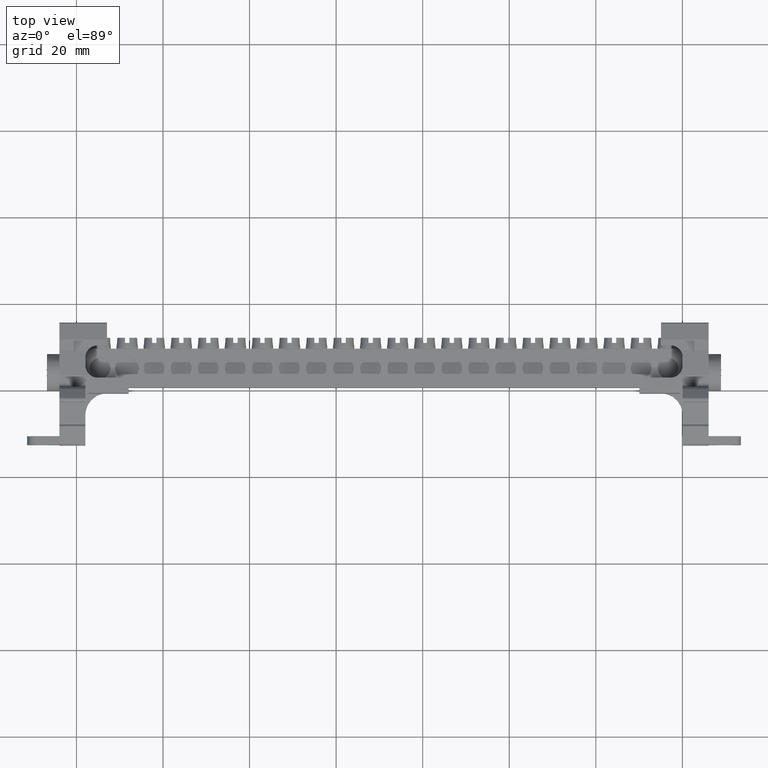
[diagram: clean part render]
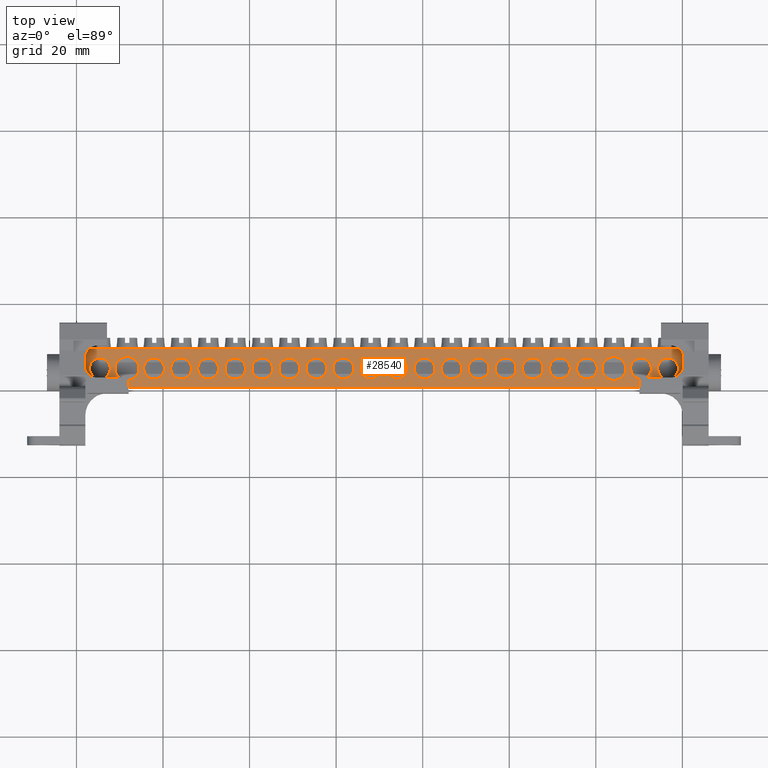
[diagram: same view with one face highlighted and labeled with its STEP entity id]
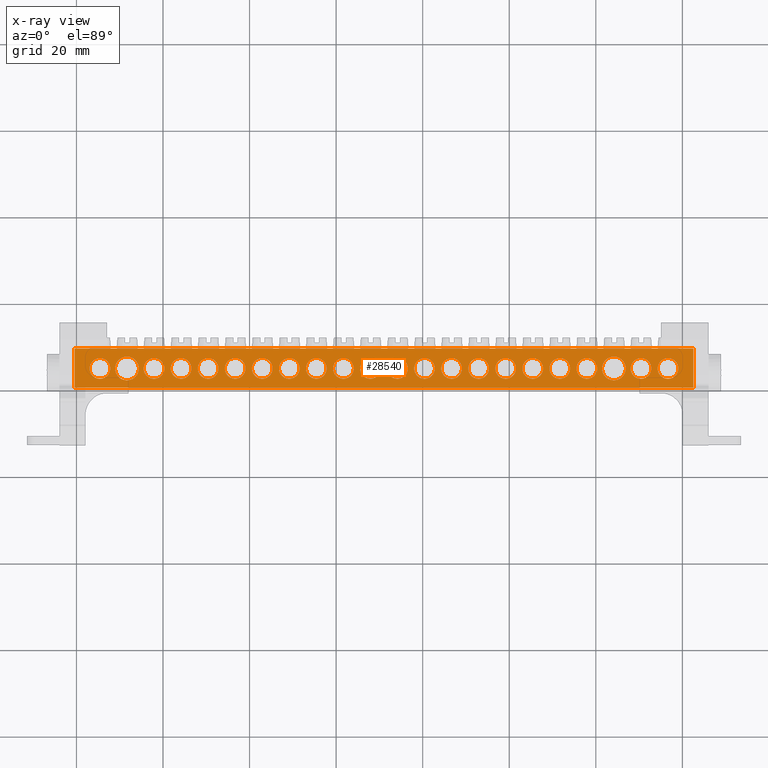
[diagram: x-ray of the same camera — body ghosted, the highlighted face saturated]
A machine part, top view. The second image highlights one B-rep face of the part: STEP entity #28540.
The next image is the same camera in x-ray: the body ghosted, the highlighted face saturated — about 0% of this face is hidden behind the body in this view.
In plain terms, the highlighted planar face has unit normal (-0, -0, 1).
Its self-contained STEP definition (entity closure, byte-faithful):
#556 = CIRCLE ( 'NONE', #573, 2.399999999999999500 ) ;
#560 = CIRCLE ( 'NONE', #571, 2.399999999999999500 ) ;
#564 = CIRCLE ( 'NONE', #597, 2.399999999999999500 ) ;
#571 = AXIS2_PLACEMENT_3D ( 'NONE', #18329, #18360, #18357 ) ;
#573 = AXIS2_PLACEMENT_3D ( 'NONE', #18232, #18201, #18177 ) ;
#575 = AXIS2_PLACEMENT_3D ( 'NONE', #18197, #18152, #18247 ) ;
#585 = CIRCLE ( 'NONE', #600, 2.750000000000002700 ) ;
#597 = AXIS2_PLACEMENT_3D ( 'NONE', #18392, #18439, #18432 ) ;
#598 = AXIS2_PLACEMENT_3D ( 'NONE', #18260, #18229, #18245 ) ;
#600 = AXIS2_PLACEMENT_3D ( 'NONE', #18301, #18327, #18289 ) ;
#607 = CIRCLE ( 'NONE', #598, 2.399999999999999500 ) ;
#609 = CIRCLE ( 'NONE', #575, 2.399999999999999500 ) ;
#611 = CIRCLE ( 'NONE', #612, 2.399999999999999500 ) ;
#612 = AXIS2_PLACEMENT_3D ( 'NONE', #18684, #18724, #18708 ) ;
#624 = CIRCLE ( 'NONE', #634, 2.399999999999999500 ) ;
#626 = CIRCLE ( 'NONE', #635, 2.750000000000002700 ) ;
#634 = AXIS2_PLACEMENT_3D ( 'NONE', #18573, #18642, #18597 ) ;
#635 = AXIS2_PLACEMENT_3D ( 'NONE', #18764, #18683, #18731 ) ;
#720 = AXIS2_PLACEMENT_3D ( 'NONE', #11754, #11761, #11814 ) ;
#739 = CIRCLE ( 'NONE', #720, 2.399999999999999500 ) ;
#767 = CIRCLE ( 'NONE', #772, 2.399999999999999500 ) ;
#772 = AXIS2_PLACEMENT_3D ( 'NONE', #10725, #10723, #10708 ) ;
#786 = CIRCLE ( 'NONE', #800, 2.399999999999999500 ) ;
#794 = CIRCLE ( 'NONE', #799, 2.399999999999999500 ) ;
#799 = AXIS2_PLACEMENT_3D ( 'NONE', #10759, #10747, #10775 ) ;
#800 = AXIS2_PLACEMENT_3D ( 'NONE', #10740, #10711, #10715 ) ;
#813 = CIRCLE ( 'NONE', #824, 2.399999999999999500 ) ;
#815 = CIRCLE ( 'NONE', #853, 2.750000000000002700 ) ;
#819 = CIRCLE ( 'NONE', #855, 2.399999999999999500 ) ;
#821 = CIRCLE ( 'NONE', #822, 2.399999999999999500 ) ;
#822 = AXIS2_PLACEMENT_3D ( 'NONE', #10861, #10859, #10845 ) ;
#824 = AXIS2_PLACEMENT_3D ( 'NONE', #10875, #10876, #10841 ) ;
#838 = CIRCLE ( 'NONE', #852, 2.399999999999999500 ) ;
#852 = AXIS2_PLACEMENT_3D ( 'NONE', #10774, #10778, #10761 ) ;
#853 = AXIS2_PLACEMENT_3D ( 'NONE', #10805, #10824, #10825 ) ;
#855 = AXIS2_PLACEMENT_3D ( 'NONE', #10809, #10832, #10828 ) ;
#858 = CIRCLE ( 'NONE', #860, 2.399999999999999500 ) ;
#860 = AXIS2_PLACEMENT_3D ( 'NONE', #10812, #10816, #10827 ) ;
#863 = CIRCLE ( 'NONE', #870, 2.399999999999999500 ) ;
#864 = CIRCLE ( 'NONE', #866, 2.399999999999999500 ) ;
#866 = AXIS2_PLACEMENT_3D ( 'NONE', #10995, #11003, #10984 ) ;
#870 = AXIS2_PLACEMENT_3D ( 'NONE', #10966, #10956, #10946 ) ;
#880 = AXIS2_PLACEMENT_3D ( 'NONE', #10953, #10958, #10927 ) ;
#881 = AXIS2_PLACEMENT_3D ( 'NONE', #10901, #10902, #10926 ) ;
#884 = CIRCLE ( 'NONE', #881, 2.399999999999999500 ) ;
#885 = CIRCLE ( 'NONE', #893, 2.399999999999999500 ) ;
#893 = AXIS2_PLACEMENT_3D ( 'NONE', #10935, #10945, #10967 ) ;
#896 = CIRCLE ( 'NONE', #880, 2.399999999999999500 ) ;
#898 = AXIS2_PLACEMENT_3D ( 'NONE', #11005, #10986, #10980 ) ;
#904 = CIRCLE ( 'NONE', #933, 2.399999999999999500 ) ;
#908 = AXIS2_PLACEMENT_3D ( 'NONE', #11033, #11081, #11082 ) ;
#933 = AXIS2_PLACEMENT_3D ( 'NONE', #10982, #10974, #10983 ) ;
#937 = CIRCLE ( 'NONE', #946, 2.399999999999999500 ) ;
#944 = CIRCLE ( 'NONE', #908, 2.399999999999999500 ) ;
#945 = CIRCLE ( 'NONE', #898, 2.399999999999999500 ) ;
#946 = AXIS2_PLACEMENT_3D ( 'NONE', #11031, #11013, #11014 ) ;
#950 = CIRCLE ( 'NONE', #980, 2.750000000000002700 ) ;
#954 = AXIS2_PLACEMENT_3D ( 'NONE', #11108, #11137, #11124 ) ;
#964 = CIRCLE ( 'NONE', #968, 2.399999999999999500 ) ;
#968 = AXIS2_PLACEMENT_3D ( 'NONE', #11202, #11234, #11210 ) ;
#978 = CIRCLE ( 'NONE', #954, 2.399999999999999500 ) ;
#980 = AXIS2_PLACEMENT_3D ( 'NONE', #11133, #11134, #11136 ) ;
#1210 = CIRCLE ( 'NONE', #1211, 2.399999999999999500 ) ;
#1211 = AXIS2_PLACEMENT_3D ( 'NONE', #19902, #19966, #19968 ) ;
#1213 = CIRCLE ( 'NONE', #1216, 2.399999999999999500 ) ;
#1216 = AXIS2_PLACEMENT_3D ( 'NONE', #19893, #19935, #19928 ) ;
#1218 = CIRCLE ( 'NONE', #1219, 2.399999999999999500 ) ;
#1219 = AXIS2_PLACEMENT_3D ( 'NONE', #19925, #19944, #19957 ) ;
#1221 = CIRCLE ( 'NONE', #1225, 2.399999999999999500 ) ;
#1225 = AXIS2_PLACEMENT_3D ( 'NONE', #20035, #20036, #19975 ) ;
#1230 = CIRCLE ( 'NONE', #1238, 2.399999999999999500 ) ;
#1234 = VECTOR ( 'NONE', #17920, 1000.000000000000000 ) ;
#1238 = AXIS2_PLACEMENT_3D ( 'NONE', #19882, #19894, #19938 ) ;
#1603 = FACE_BOUND ( 'NONE', #10123, .T. ) ;
#1606 = FACE_BOUND ( 'NONE', #10323, .T. ) ;
#1607 = PLANE ( 'NONE',  #9420 ) ;
#1609 = CARTESIAN_POINT ( 'NONE',  ( -153.6716458143864900, -90.50918132485030300, 219.2213441700660000 ) ) ;
#1610 = DIRECTION ( 'NONE',  ( 0.0000000000000000000, -1.000000000000000000, -1.302291607885310100E-013 ) ) ;
#1613 = FACE_BOUND ( 'NONE', #10199, .T. ) ;
#1614 = FACE_BOUND ( 'NONE', #10329, .T. ) ;
#1617 = FACE_BOUND ( 'NONE', #10326, .T. ) ;
#1619 = FACE_BOUND ( 'NONE', #10288, .T. ) ;
#1621 = FACE_BOUND ( 'NONE', #10332, .T. ) ;
#1624 = FACE_OUTER_BOUND ( 'NONE', #10342, .T. ) ;
#1625 = FACE_BOUND ( 'NONE', #10312, .T. ) ;
#1626 = FACE_BOUND ( 'NONE', #10274, .T. ) ;
#1627 = FACE_BOUND ( 'NONE', #10304, .T. ) ;
#1628 = FACE_BOUND ( 'NONE', #10347, .T. ) ;
#1630 = FACE_BOUND ( 'NONE', #10181, .T. ) ;
#1632 = FACE_BOUND ( 'NONE', #10117, .T. ) ;
#1633 = DIRECTION ( 'NONE',  ( -2.356061070560432900E-015, -1.302291607885310100E-013, 1.000000000000000000 ) ) ;
#1637 = FACE_BOUND ( 'NONE', #10349, .T. ) ;
#1643 = FACE_BOUND ( 'NONE', #10318, .T. ) ;
#1646 = FACE_BOUND ( 'NONE', #10355, .T. ) ;
#1652 = FACE_BOUND ( 'NONE', #10345, .T. ) ;
#1653 = FACE_BOUND ( 'NONE', #10359, .T. ) ;
#1654 = FACE_BOUND ( 'NONE', #10284, .T. ) ;
#1655 = FACE_BOUND ( 'NONE', #10350, .T. ) ;
#1656 = FACE_BOUND ( 'NONE', #10290, .T. ) ;
#1657 = FACE_BOUND ( 'NONE', #10310, .T. ) ;
#2142 = CARTESIAN_POINT ( 'NONE',  ( -125.8216458143864600, -97.50918132485082900, 219.2213441700651800 ) ) ;
#2148 = CARTESIAN_POINT ( 'NONE',  ( -132.0716458143864700, -92.70918132485083200, 219.2213441700657500 ) ) ;
#2149 = CARTESIAN_POINT ( 'NONE',  ( -113.3216458143864300, -97.50918132485082900, 219.2213441700652100 ) ) ;
#2151 = CARTESIAN_POINT ( 'NONE',  ( -138.3216458143864700, -92.70918132485083200, 219.2213441700657500 ) ) ;
#2155 = CARTESIAN_POINT ( 'NONE',  ( -169.5716458143865000, -92.70918132485083200, 219.2213441700656600 ) ) ;
#2156 = CARTESIAN_POINT ( 'NONE',  ( -175.8216458143865000, -97.50918132485058700, 219.2213441700647000 ) ) ;
#2164 = CARTESIAN_POINT ( 'NONE',  ( -100.8216458143864100, -97.50918132485082900, 219.2213441700652400 ) ) ;
#2171 = CARTESIAN_POINT ( 'NONE',  ( -144.5716458143864700, -92.70918132485083200, 219.2213441700657200 ) ) ;
#2174 = CARTESIAN_POINT ( 'NONE',  ( -182.0716458143865000, -92.70918132485073200, 219.2213441700652900 ) ) ;
#2176 = CARTESIAN_POINT ( 'NONE',  ( -163.3216458143865600, -97.50918132485082900, 219.2213441700650900 ) ) ;
#2179 = CARTESIAN_POINT ( 'NONE',  ( -138.3216458143864700, -97.50918132485082900, 219.2213441700651500 ) ) ;
#2199 = CARTESIAN_POINT ( 'NONE',  ( -169.5716458143865000, -97.50918132485082900, 219.2213441700650700 ) ) ;
#2201 = CARTESIAN_POINT ( 'NONE',  ( -150.8216458143864700, -97.50918132485082900, 219.2213441700651200 ) ) ;
#2204 = CARTESIAN_POINT ( 'NONE',  ( -132.0716458143864700, -97.50918132485082900, 219.2213441700651500 ) ) ;
#2207 = CARTESIAN_POINT ( 'NONE',  ( -107.0716458143864300, -97.50918132485082900, 219.2213441700652100 ) ) ;
#2210 = CARTESIAN_POINT ( 'NONE',  ( -125.8216458143864600, -92.70918132485083200, 219.2213441700657800 ) ) ;
#2211 = CARTESIAN_POINT ( 'NONE',  ( -69.57164581438650000, -92.70918132485049100, 219.2213441700658100 ) ) ;
#2212 = CARTESIAN_POINT ( 'NONE',  ( -144.5716458143864700, -97.50918132485082900, 219.2213441700651200 ) ) ;
#2217 = CARTESIAN_POINT ( 'NONE',  ( -75.82164581438640000, -97.85918132485049600, 219.2213441700646400 ) ) ;
#2223 = CARTESIAN_POINT ( 'NONE',  ( -100.8216458143864100, -92.70918132485083200, 219.2213441700658300 ) ) ;
#2224 = CARTESIAN_POINT ( 'NONE',  ( -119.5716458143864400, -97.50918132485082900, 219.2213441700651800 ) ) ;
#2237 = CARTESIAN_POINT ( 'NONE',  ( -94.57164581438641400, -97.50918132485082900, 219.2213441700652700 ) ) ;
#2238 = CARTESIAN_POINT ( 'NONE',  ( -88.32164581438644300, -97.50918132485082900, 219.2213441700652700 ) ) ;
#2239 = CARTESIAN_POINT ( 'NONE',  ( -113.3216458143864300, -92.70918132485083200, 219.2213441700658100 ) ) ;
#2240 = CARTESIAN_POINT ( 'NONE',  ( -82.07164581438650000, -97.50918132485058700, 219.2213441700647000 ) ) ;
#2242 = CARTESIAN_POINT ( 'NONE',  ( -82.07164581438650000, -92.70918132485059000, 219.2213441700652900 ) ) ;
#2243 = CARTESIAN_POINT ( 'NONE',  ( -194.5716458143864100, -92.70918132485080300, 219.2213441700652900 ) ) ;
#2246 = CARTESIAN_POINT ( 'NONE',  ( -157.0716458143864700, -97.50918132485082900, 219.2213441700650900 ) ) ;
#2247 = CARTESIAN_POINT ( 'NONE',  ( -188.3216458143865000, -97.85918132485073800, 219.2213441700646400 ) ) ;
#2253 = CARTESIAN_POINT ( 'NONE',  ( -107.0716458143864300, -92.70918132485083200, 219.2213441700658100 ) ) ;
#2258 = CARTESIAN_POINT ( 'NONE',  ( -175.8216458143865000, -92.70918132485059000, 219.2213441700652900 ) ) ;
#2260 = CARTESIAN_POINT ( 'NONE',  ( -150.8216458143864700, -92.70918132485083200, 219.2213441700657200 ) ) ;
#2262 = CARTESIAN_POINT ( 'NONE',  ( -157.0716458143864700, -92.70918132485083200, 219.2213441700656900 ) ) ;
#2265 = CARTESIAN_POINT ( 'NONE',  ( -119.5716458143864400, -92.70918132485083200, 219.2213441700657800 ) ) ;
#2268 = CARTESIAN_POINT ( 'NONE',  ( -163.3216458143865600, -92.70918132485083200, 219.2213441700656900 ) ) ;
#2281 = CARTESIAN_POINT ( 'NONE',  ( -88.32164581438644300, -92.70918132485083200, 219.2213441700658600 ) ) ;
#2298 = CARTESIAN_POINT ( 'NONE',  ( -194.5716458143864100, -97.50918132485080000, 219.2213441700647000 ) ) ;
#2302 = CARTESIAN_POINT ( 'NONE',  ( -182.0716458143865000, -97.50918132485072900, 219.2213441700647000 ) ) ;
#2310 = CARTESIAN_POINT ( 'NONE',  ( -94.57164581438641400, -92.70918132485083200, 219.2213441700658600 ) ) ;
#2311 = CARTESIAN_POINT ( 'NONE',  ( -63.32164581438640000, -97.50918132485040200, 219.2213441700652100 ) ) ;
#2313 = CARTESIAN_POINT ( 'NONE',  ( -69.57164581438650000, -97.50918132485048800, 219.2213441700652100 ) ) ;
#2316 = CARTESIAN_POINT ( 'NONE',  ( -63.32164581438640000, -92.70918132485039100, 219.2213441700658100 ) ) ;
#2329 = CARTESIAN_POINT ( 'NONE',  ( -188.3216458143865000, -92.35918132485072400, 219.2213441700653500 ) ) ;
#2332 = CARTESIAN_POINT ( 'NONE',  ( -75.82164581438640000, -92.35918132485049600, 219.2213441700653500 ) ) ;
#2437 = CARTESIAN_POINT ( 'NONE',  ( -187.9416458143863300, -99.50797067425637000, 219.2213441700646700 ) ) ;
#4989 = AXIS2_PLACEMENT_3D ( 'NONE', #22477, #22460, #22484 ) ;
#4995 = VECTOR ( 'NONE', #22495, 1000.000000000000000 ) ;
#4999 = VECTOR ( 'NONE', #22426, 1000.000000000000000 ) ;
#5003 = VECTOR ( 'NONE', #22461, 1000.000000000000000 ) ;
#5009 = CIRCLE ( 'NONE', #4989, 2.399999999999999500 ) ;
#5177 = VECTOR ( 'NONE', #21789, 1000.000000000000000 ) ;
#7170 = VERTEX_POINT ( 'NONE', #21390 ) ;
#7172 = VERTEX_POINT ( 'NONE', #21361 ) ;
#7180 = VERTEX_POINT ( 'NONE', #21376 ) ;
#7183 = VERTEX_POINT ( 'NONE', #21379 ) ;
#7185 = VERTEX_POINT ( 'NONE', #21391 ) ;
#7187 = VERTEX_POINT ( 'NONE', #21394 ) ;
#7200 = VERTEX_POINT ( 'NONE', #21414 ) ;
#7722 = VERTEX_POINT ( 'NONE', #28138 ) ;
#7775 = VERTEX_POINT ( 'NONE', #11874 ) ;
#9420 = AXIS2_PLACEMENT_3D ( 'NONE', #1609, #1633, #1610 ) ;
#10001 = ORIENTED_EDGE ( 'NONE', *, *, #18202, .T. ) ;
#10003 = ORIENTED_EDGE ( 'NONE', *, *, #18222, .T. ) ;
#10019 = ORIENTED_EDGE ( 'NONE', *, *, #17028, .T. ) ;
#10029 = ORIENTED_EDGE ( 'NONE', *, *, #18154, .T. ) ;
#10053 = ORIENTED_EDGE ( 'NONE', *, *, #17027, .T. ) ;
#10055 = ORIENTED_EDGE ( 'NONE', *, *, #17270, .T. ) ;
#10057 = ORIENTED_EDGE ( 'NONE', *, *, #18162, .T. ) ;
#10062 = ORIENTED_EDGE ( 'NONE', *, *, #17428, .T. ) ;
#10063 = ORIENTED_EDGE ( 'NONE', *, *, #17167, .F. ) ;
#10065 = ORIENTED_EDGE ( 'NONE', *, *, #17239, .T. ) ;
#10066 = ORIENTED_EDGE ( 'NONE', *, *, #17466, .T. ) ;
#10071 = ORIENTED_EDGE ( 'NONE', *, *, #18237, .T. ) ;
#10073 = ORIENTED_EDGE ( 'NONE', *, *, #17451, .T. ) ;
#10074 = ORIENTED_EDGE ( 'NONE', *, *, #17454, .T. ) ;
#10077 = ORIENTED_EDGE ( 'NONE', *, *, #17481, .T. ) ;
#10081 = ORIENTED_EDGE ( 'NONE', *, *, #17429, .T. ) ;
#10083 = ORIENTED_EDGE ( 'NONE', *, *, #17504, .T. ) ;
#10085 = ORIENTED_EDGE ( 'NONE', *, *, #17205, .T. ) ;
#10091 = ORIENTED_EDGE ( 'NONE', *, *, #17461, .T. ) ;
#10098 = ORIENTED_EDGE ( 'NONE', *, *, #17218, .F. ) ;
#10100 = ORIENTED_EDGE ( 'NONE', *, *, #18205, .T. ) ;
#10104 = ORIENTED_EDGE ( 'NONE', *, *, #17238, .T. ) ;
#10108 = ORIENTED_EDGE ( 'NONE', *, *, #17226, .T. ) ;
#10117 = EDGE_LOOP ( 'NONE', ( #10212, #10130 ) ) ;
#10122 = ORIENTED_EDGE ( 'NONE', *, *, #17507, .T. ) ;
#10123 = EDGE_LOOP ( 'NONE', ( #10177, #10217 ) ) ;
#10130 = ORIENTED_EDGE ( 'NONE', *, *, #17473, .T. ) ;
#10131 = ORIENTED_EDGE ( 'NONE', *, *, #18212, .T. ) ;
#10133 = ORIENTED_EDGE ( 'NONE', *, *, #17472, .T. ) ;
#10136 = ORIENTED_EDGE ( 'NONE', *, *, #18164, .T. ) ;
#10143 = ORIENTED_EDGE ( 'NONE', *, *, #17421, .T. ) ;
#10147 = ORIENTED_EDGE ( 'NONE', *, *, #17488, .T. ) ;
#10148 = ORIENTED_EDGE ( 'NONE', *, *, #18136, .T. ) ;
#10153 = ORIENTED_EDGE ( 'NONE', *, *, #17204, .T. ) ;
#10154 = ORIENTED_EDGE ( 'NONE', *, *, #17356, .T. ) ;
#10155 = ORIENTED_EDGE ( 'NONE', *, *, #17530, .T. ) ;
#10159 = ORIENTED_EDGE ( 'NONE', *, *, #17436, .T. ) ;
#10161 = ORIENTED_EDGE ( 'NONE', *, *, #17230, .T. ) ;
#10162 = ORIENTED_EDGE ( 'NONE', *, *, #17013, .T. ) ;
#10163 = ORIENTED_EDGE ( 'NONE', *, *, #17408, .T. ) ;
#10171 = ORIENTED_EDGE ( 'NONE', *, *, #17208, .T. ) ;
#10177 = ORIENTED_EDGE ( 'NONE', *, *, #18134, .T. ) ;
#10179 = ORIENTED_EDGE ( 'NONE', *, *, #17435, .T. ) ;
#10181 = EDGE_LOOP ( 'NONE', ( #10186, #10208 ) ) ;
#10186 = ORIENTED_EDGE ( 'NONE', *, *, #17025, .T. ) ;
#10188 = ORIENTED_EDGE ( 'NONE', *, *, #17272, .T. ) ;
#10190 = ORIENTED_EDGE ( 'NONE', *, *, #17273, .T. ) ;
#10192 = ORIENTED_EDGE ( 'NONE', *, *, #17201, .T. ) ;
#10196 = ORIENTED_EDGE ( 'NONE', *, *, #18195, .T. ) ;
#10199 = EDGE_LOOP ( 'NONE', ( #10100, #10143 ) ) ;
#10202 = ORIENTED_EDGE ( 'NONE', *, *, #17452, .T. ) ;
#10203 = ORIENTED_EDGE ( 'NONE', *, *, #17254, .T. ) ;
#10205 = ORIENTED_EDGE ( 'NONE', *, *, #17234, .T. ) ;
#10206 = ORIENTED_EDGE ( 'NONE', *, *, #17203, .T. ) ;
#10208 = ORIENTED_EDGE ( 'NONE', *, *, #17393, .T. ) ;
#10211 = ORIENTED_EDGE ( 'NONE', *, *, #17398, .T. ) ;
#10212 = ORIENTED_EDGE ( 'NONE', *, *, #18217, .T. ) ;
#10217 = ORIENTED_EDGE ( 'NONE', *, *, #17417, .T. ) ;
#10274 = EDGE_LOOP ( 'NONE', ( #10104, #10083 ) ) ;
#10284 = EDGE_LOOP ( 'NONE', ( #10085, #10179 ) ) ;
#10288 = EDGE_LOOP ( 'NONE', ( #10192, #10155 ) ) ;
#10290 = EDGE_LOOP ( 'NONE', ( #10153, #10074 ) ) ;
#10304 = EDGE_LOOP ( 'NONE', ( #10161, #10147 ) ) ;
#10310 = EDGE_LOOP ( 'NONE', ( #10188, #10062 ) ) ;
#10312 = EDGE_LOOP ( 'NONE', ( #10071, #10081 ) ) ;
#10318 = EDGE_LOOP ( 'NONE', ( #10171, #10073 ) ) ;
#10323 = EDGE_LOOP ( 'NONE', ( #10108, #10077 ) ) ;
#10326 = EDGE_LOOP ( 'NONE', ( #10131, #10202 ) ) ;
#10329 = EDGE_LOOP ( 'NONE', ( #10057, #10159 ) ) ;
#10332 = EDGE_LOOP ( 'NONE', ( #10190, #10066 ) ) ;
#10342 = EDGE_LOOP ( 'NONE', ( #10003, #10019, #10029, #10001, #10063, #10136, #10098, #10053, #10162, #10196 ) ) ;
#10345 = EDGE_LOOP ( 'NONE', ( #10065, #10133 ) ) ;
#10347 = EDGE_LOOP ( 'NONE', ( #10203, #10163 ) ) ;
#10349 = EDGE_LOOP ( 'NONE', ( #10205, #10122 ) ) ;
#10350 = EDGE_LOOP ( 'NONE', ( #10206, #10154 ) ) ;
#10355 = EDGE_LOOP ( 'NONE', ( #10148, #10091 ) ) ;
#10359 = EDGE_LOOP ( 'NONE', ( #10055, #10211 ) ) ;
#10708 = DIRECTION ( 'NONE',  ( 0.0000000000000000000, 1.000000000000000000, 1.272130549049658700E-013 ) ) ;
#10711 = DIRECTION ( 'NONE',  ( 2.356061070560435300E-015, 1.300071161836058300E-013, -1.000000000000000000 ) ) ;
#10715 = DIRECTION ( 'NONE',  ( 0.0000000000000000000, 1.000000000000000000, 1.272130549049658700E-013 ) ) ;
#10723 = DIRECTION ( 'NONE',  ( 2.356061070560435300E-015, 1.300071161836058300E-013, -1.000000000000000000 ) ) ;
#10725 = CARTESIAN_POINT ( 'NONE',  ( -163.3216458143865600, -95.10918132485082300, 219.2213441700653800 ) ) ;
#10740 = CARTESIAN_POINT ( 'NONE',  ( -119.5716458143864400, -95.10918132485082300, 219.2213441700654600 ) ) ;
#10747 = DIRECTION ( 'NONE',  ( 2.356061070560435300E-015, 1.300071161836058300E-013, -1.000000000000000000 ) ) ;
#10759 = CARTESIAN_POINT ( 'NONE',  ( -100.8216458143864100, -95.10918132485082300, 219.2213441700655200 ) ) ;
#10761 = DIRECTION ( 'NONE',  ( 0.0000000000000000000, 1.000000000000000000, 1.272130549049658700E-013 ) ) ;
#10774 = CARTESIAN_POINT ( 'NONE',  ( -157.0716458143864700, -95.10918132485082300, 219.2213441700653800 ) ) ;
#10775 = DIRECTION ( 'NONE',  ( 0.0000000000000000000, 1.000000000000000000, 1.272130549049658700E-013 ) ) ;
#10778 = DIRECTION ( 'NONE',  ( 2.356061070560435300E-015, 1.300071161836058300E-013, -1.000000000000000000 ) ) ;
#10805 = CARTESIAN_POINT ( 'NONE',  ( -188.3216458143865000, -95.10918132485072400, 219.2213441700650100 ) ) ;
#10809 = CARTESIAN_POINT ( 'NONE',  ( -169.5716458143865000, -95.10918132485082300, 219.2213441700653500 ) ) ;
#10812 = CARTESIAN_POINT ( 'NONE',  ( -150.8216458143864700, -95.10918132485082300, 219.2213441700654100 ) ) ;
#10816 = DIRECTION ( 'NONE',  ( 2.356061070560435300E-015, 1.300071161836058300E-013, -1.000000000000000000 ) ) ;
#10824 = DIRECTION ( 'NONE',  ( 2.356061070560435300E-015, 1.299516050323746000E-013, -1.000000000000000000 ) ) ;
#10825 = DIRECTION ( 'NONE',  ( 0.0000000000000000000, 1.000000000000000000, 1.312081756375183700E-013 ) ) ;
#10827 = DIRECTION ( 'NONE',  ( 0.0000000000000000000, 1.000000000000000000, 1.272130549049658700E-013 ) ) ;
#10828 = DIRECTION ( 'NONE',  ( 0.0000000000000000000, 1.000000000000000000, 1.272130549049658700E-013 ) ) ;
#10832 = DIRECTION ( 'NONE',  ( 2.356061070560435300E-015, 1.300071161836058300E-013, -1.000000000000000000 ) ) ;
#10841 = DIRECTION ( 'NONE',  ( 0.0000000000000000000, 1.000000000000000000, 1.272130549049658700E-013 ) ) ;
#10845 = DIRECTION ( 'NONE',  ( 0.0000000000000000000, 1.000000000000000000, 1.272130549049658700E-013 ) ) ;
#10859 = DIRECTION ( 'NONE',  ( 2.356061070560435300E-015, 1.300071161836058300E-013, -1.000000000000000000 ) ) ;
#10861 = CARTESIAN_POINT ( 'NONE',  ( -113.3216458143864300, -95.10918132485082300, 219.2213441700654900 ) ) ;
#10875 = CARTESIAN_POINT ( 'NONE',  ( -144.5716458143864700, -95.10918132485082300, 219.2213441700654100 ) ) ;
#10876 = DIRECTION ( 'NONE',  ( 2.356061070560435300E-015, 1.300071161836058300E-013, -1.000000000000000000 ) ) ;
#10901 = CARTESIAN_POINT ( 'NONE',  ( -125.8216458143864600, -95.10918132485082300, 219.2213441700654600 ) ) ;
#10902 = DIRECTION ( 'NONE',  ( 2.356061070560435300E-015, 1.300071161836058300E-013, -1.000000000000000000 ) ) ;
#10926 = DIRECTION ( 'NONE',  ( 0.0000000000000000000, 1.000000000000000000, 1.272130549049658700E-013 ) ) ;
#10927 = DIRECTION ( 'NONE',  ( 0.0000000000000000000, 1.000000000000000000, 1.272130549049658700E-013 ) ) ;
#10935 = CARTESIAN_POINT ( 'NONE',  ( -82.07164581438650000, -95.10918132485059600, 219.2213441700650100 ) ) ;
#10945 = DIRECTION ( 'NONE',  ( 2.356061070560435300E-015, 1.299516050323746000E-013, -1.000000000000000000 ) ) ;
#10946 = DIRECTION ( 'NONE',  ( 0.0000000000000000000, 1.000000000000000000, 1.272130549049658700E-013 ) ) ;
#10953 = CARTESIAN_POINT ( 'NONE',  ( -138.3216458143864700, -95.10918132485082300, 219.2213441700654400 ) ) ;
#10956 = DIRECTION ( 'NONE',  ( 2.356061070560435300E-015, 1.300071161836058300E-013, -1.000000000000000000 ) ) ;
#10958 = DIRECTION ( 'NONE',  ( 2.356061070560435300E-015, 1.300071161836058300E-013, -1.000000000000000000 ) ) ;
#10966 = CARTESIAN_POINT ( 'NONE',  ( -132.0716458143864700, -95.10918132485082300, 219.2213441700654400 ) ) ;
#10967 = DIRECTION ( 'NONE',  ( 0.0000000000000000000, 1.000000000000000000, 1.272130549049658700E-013 ) ) ;
#10974 = DIRECTION ( 'NONE',  ( 2.356061070560435300E-015, 1.299516050323746000E-013, -1.000000000000000000 ) ) ;
#10980 = DIRECTION ( 'NONE',  ( 0.0000000000000000000, 1.000000000000000000, 1.272130549049658700E-013 ) ) ;
#10982 = CARTESIAN_POINT ( 'NONE',  ( -175.8216458143865000, -95.10918132485059600, 219.2213441700650100 ) ) ;
#10983 = DIRECTION ( 'NONE',  ( 0.0000000000000000000, 1.000000000000000000, 1.272130549049658700E-013 ) ) ;
#10984 = DIRECTION ( 'NONE',  ( 0.0000000000000000000, 1.000000000000000000, 1.272130549049658700E-013 ) ) ;
#10986 = DIRECTION ( 'NONE',  ( 2.356061070560435300E-015, 1.300071161836058300E-013, -1.000000000000000000 ) ) ;
#10995 = CARTESIAN_POINT ( 'NONE',  ( -94.57164581438641400, -95.10918132485082300, 219.2213441700655500 ) ) ;
#11003 = DIRECTION ( 'NONE',  ( 2.356061070560435300E-015, 1.300071161836058300E-013, -1.000000000000000000 ) ) ;
#11005 = CARTESIAN_POINT ( 'NONE',  ( -88.32164581438644300, -95.10918132485082300, 219.2213441700655500 ) ) ;
#11013 = DIRECTION ( 'NONE',  ( 2.356061070560435300E-015, 1.299516050323746000E-013, -1.000000000000000000 ) ) ;
#11014 = DIRECTION ( 'NONE',  ( 0.0000000000000000000, 1.000000000000000000, 1.272130549049658700E-013 ) ) ;
#11031 = CARTESIAN_POINT ( 'NONE',  ( -182.0716458143865000, -95.10918132485072400, 219.2213441700650100 ) ) ;
#11033 = CARTESIAN_POINT ( 'NONE',  ( -69.57164581438650000, -95.10918132485049600, 219.2213441700654900 ) ) ;
#11081 = DIRECTION ( 'NONE',  ( 2.356061070560435300E-015, 1.299516050323746000E-013, -1.000000000000000000 ) ) ;
#11082 = DIRECTION ( 'NONE',  ( 0.0000000000000000000, 1.000000000000000000, 1.272130549049658700E-013 ) ) ;
#11108 = CARTESIAN_POINT ( 'NONE',  ( -63.32164581438640000, -95.10918132485039700, 219.2213441700654900 ) ) ;
#11124 = DIRECTION ( 'NONE',  ( 0.0000000000000000000, 1.000000000000000000, 1.272130549049658700E-013 ) ) ;
#11133 = CARTESIAN_POINT ( 'NONE',  ( -75.82164581438640000, -95.10918132485049600, 219.2213441700650100 ) ) ;
#11134 = DIRECTION ( 'NONE',  ( 2.356061070560435300E-015, 1.299516050323746000E-013, -1.000000000000000000 ) ) ;
#11136 = DIRECTION ( 'NONE',  ( 0.0000000000000000000, 1.000000000000000000, 1.312081756375183700E-013 ) ) ;
#11137 = DIRECTION ( 'NONE',  ( 2.356061070560435300E-015, 1.299516050323746000E-013, -1.000000000000000000 ) ) ;
#11202 = CARTESIAN_POINT ( 'NONE',  ( -194.5716458143864100, -95.10918132485079500, 219.2213441700650100 ) ) ;
#11210 = DIRECTION ( 'NONE',  ( 0.0000000000000000000, 1.000000000000000000, 1.272130549049658700E-013 ) ) ;
#11234 = DIRECTION ( 'NONE',  ( 2.356061070560435300E-015, 1.299516050323746000E-013, -1.000000000000000000 ) ) ;
#11754 = CARTESIAN_POINT ( 'NONE',  ( -107.0716458143864300, -95.10918132485082300, 219.2213441700654900 ) ) ;
#11761 = DIRECTION ( 'NONE',  ( 2.356061070560435300E-015, 1.300071161836058300E-013, -1.000000000000000000 ) ) ;
#11814 = DIRECTION ( 'NONE',  ( 0.0000000000000000000, 1.000000000000000000, 1.272130549049658700E-013 ) ) ;
#11874 = CARTESIAN_POINT ( 'NONE',  ( -57.47164581438645600, -92.94444830645089400, 219.2213441700657200 ) ) ;
#17013 = EDGE_CURVE ( 'NONE', #7180, #7775, #22438, .T. ) ;
#17025 = EDGE_CURVE ( 'NONE', #26359, #26284, #5009, .T. ) ;
#17027 = EDGE_CURVE ( 'NONE', #7170, #7180, #22485, .T. ) ;
#17028 = EDGE_CURVE ( 'NONE', #7172, #7722, #22472, .T. ) ;
#17167 = EDGE_CURVE ( 'NONE', #7185, #27506, #22098, .T. ) ;
#17201 = EDGE_CURVE ( 'NONE', #26407, #26469, #1218, .T. ) ;
#17203 = EDGE_CURVE ( 'NONE', #26335, #26339, #1210, .T. ) ;
#17204 = EDGE_CURVE ( 'NONE', #26376, #26353, #1230, .T. ) ;
#17205 = EDGE_CURVE ( 'NONE', #26321, #26280, #1213, .T. ) ;
#17208 = EDGE_CURVE ( 'NONE', #26319, #26275, #1221, .T. ) ;
#17218 = EDGE_CURVE ( 'NONE', #7170, #7183, #20164, .T. ) ;
#17226 = EDGE_CURVE ( 'NONE', #26291, #26422, #556, .T. ) ;
#17230 = EDGE_CURVE ( 'NONE', #26312, #26467, #609, .T. ) ;
#17234 = EDGE_CURVE ( 'NONE', #26425, #26476, #607, .T. ) ;
#17238 = EDGE_CURVE ( 'NONE', #26413, #26315, #585, .T. ) ;
#17239 = EDGE_CURVE ( 'NONE', #26474, #26405, #560, .T. ) ;
#17254 = EDGE_CURVE ( 'NONE', #26296, #26271, #564, .T. ) ;
#17270 = EDGE_CURVE ( 'NONE', #26347, #26304, #624, .T. ) ;
#17272 = EDGE_CURVE ( 'NONE', #26437, #26317, #626, .T. ) ;
#17273 = EDGE_CURVE ( 'NONE', #26454, #26313, #611, .T. ) ;
#17356 = EDGE_CURVE ( 'NONE', #26339, #26335, #739, .T. ) ;
#17393 = EDGE_CURVE ( 'NONE', #26284, #26359, #767, .T. ) ;
#17398 = EDGE_CURVE ( 'NONE', #26304, #26347, #786, .T. ) ;
#17408 = EDGE_CURVE ( 'NONE', #26271, #26296, #794, .T. ) ;
#17417 = EDGE_CURVE ( 'NONE', #26349, #26337, #838, .T. ) ;
#17421 = EDGE_CURVE ( 'NONE', #26195, #26199, #819, .T. ) ;
#17428 = EDGE_CURVE ( 'NONE', #26317, #26437, #815, .T. ) ;
#17429 = EDGE_CURVE ( 'NONE', #26261, #26365, #858, .T. ) ;
#17435 = EDGE_CURVE ( 'NONE', #26280, #26321, #821, .T. ) ;
#17436 = EDGE_CURVE ( 'NONE', #26351, #26219, #813, .T. ) ;
#17451 = EDGE_CURVE ( 'NONE', #26275, #26319, #884, .T. ) ;
#17452 = EDGE_CURVE ( 'NONE', #26294, #26282, #896, .T. ) ;
#17454 = EDGE_CURVE ( 'NONE', #26353, #26376, #885, .T. ) ;
#17461 = EDGE_CURVE ( 'NONE', #26263, #26259, #863, .T. ) ;
#17466 = EDGE_CURVE ( 'NONE', #26313, #26454, #864, .T. ) ;
#17472 = EDGE_CURVE ( 'NONE', #26405, #26474, #945, .T. ) ;
#17473 = EDGE_CURVE ( 'NONE', #26197, #26355, #904, .T. ) ;
#17481 = EDGE_CURVE ( 'NONE', #26422, #26291, #937, .T. ) ;
#17488 = EDGE_CURVE ( 'NONE', #26467, #26312, #944, .T. ) ;
#17504 = EDGE_CURVE ( 'NONE', #26315, #26413, #950, .T. ) ;
#17507 = EDGE_CURVE ( 'NONE', #26476, #26425, #978, .T. ) ;
#17530 = EDGE_CURVE ( 'NONE', #26469, #26407, #964, .T. ) ;
#17920 = DIRECTION ( 'NONE',  ( 1.100161628464490100E-014, -1.000000000000000000, 0.0000000000000000000 ) ) ;
#17971 = CARTESIAN_POINT ( 'NONE',  ( -69.94164581438650400, -98.58637067425429700, 219.2213441700650400 ) ) ;
#18134 = EDGE_CURVE ( 'NONE', #26337, #26349, #32395, .T. ) ;
#18136 = EDGE_CURVE ( 'NONE', #26259, #26263, #32354, .T. ) ;
#18152 = DIRECTION ( 'NONE',  ( 2.356061070560435300E-015, 1.299516050323746000E-013, -1.000000000000000000 ) ) ;
#18154 = EDGE_CURVE ( 'NONE', #7722, #7187, #20602, .T. ) ;
#18162 = EDGE_CURVE ( 'NONE', #26219, #26351, #32358, .T. ) ;
#18164 = EDGE_CURVE ( 'NONE', #7185, #7183, #20594, .T. ) ;
#18177 = DIRECTION ( 'NONE',  ( 0.0000000000000000000, 1.000000000000000000, 1.272130549049658700E-013 ) ) ;
#18195 = EDGE_CURVE ( 'NONE', #7775, #7200, #20666, .T. ) ;
#18197 = CARTESIAN_POINT ( 'NONE',  ( -69.57164581438650000, -95.10918132485049600, 219.2213441700654900 ) ) ;
#18202 = EDGE_CURVE ( 'NONE', #7187, #27506, #20662, .T. ) ;
#18201 = DIRECTION ( 'NONE',  ( 2.356061070560435300E-015, 1.299516050323746000E-013, -1.000000000000000000 ) ) ;
#18205 = EDGE_CURVE ( 'NONE', #26199, #26195, #31853, .T. ) ;
#18212 = EDGE_CURVE ( 'NONE', #26282, #26294, #31870, .T. ) ;
#18217 = EDGE_CURVE ( 'NONE', #26355, #26197, #31857, .T. ) ;
#18222 = EDGE_CURVE ( 'NONE', #7200, #7172, #20679, .T. ) ;
#18229 = DIRECTION ( 'NONE',  ( 2.356061070560435300E-015, 1.299516050323746000E-013, -1.000000000000000000 ) ) ;
#18232 = CARTESIAN_POINT ( 'NONE',  ( -182.0716458143865000, -95.10918132485072400, 219.2213441700650100 ) ) ;
#18237 = EDGE_CURVE ( 'NONE', #26365, #26261, #31904, .T. ) ;
#18245 = DIRECTION ( 'NONE',  ( 0.0000000000000000000, 1.000000000000000000, 1.272130549049658700E-013 ) ) ;
#18247 = DIRECTION ( 'NONE',  ( 0.0000000000000000000, 1.000000000000000000, 1.272130549049658700E-013 ) ) ;
#18260 = CARTESIAN_POINT ( 'NONE',  ( -63.32164581438640000, -95.10918132485039700, 219.2213441700654900 ) ) ;
#18289 = DIRECTION ( 'NONE',  ( 0.0000000000000000000, 1.000000000000000000, 1.312081756375183700E-013 ) ) ;
#18301 = CARTESIAN_POINT ( 'NONE',  ( -75.82164581438640000, -95.10918132485049600, 219.2213441700650100 ) ) ;
#18327 = DIRECTION ( 'NONE',  ( 2.356061070560435300E-015, 1.299516050323746000E-013, -1.000000000000000000 ) ) ;
#18329 = CARTESIAN_POINT ( 'NONE',  ( -88.32164581438644300, -95.10918132485082300, 219.2213441700655500 ) ) ;
#18357 = DIRECTION ( 'NONE',  ( 0.0000000000000000000, 1.000000000000000000, 1.272130549049658700E-013 ) ) ;
#18360 = DIRECTION ( 'NONE',  ( 2.356061070560435300E-015, 1.300071161836058300E-013, -1.000000000000000000 ) ) ;
#18392 = CARTESIAN_POINT ( 'NONE',  ( -100.8216458143864100, -95.10918132485082300, 219.2213441700655200 ) ) ;
#18432 = DIRECTION ( 'NONE',  ( 0.0000000000000000000, 1.000000000000000000, 1.272130549049658700E-013 ) ) ;
#18439 = DIRECTION ( 'NONE',  ( 2.356061070560435300E-015, 1.300071161836058300E-013, -1.000000000000000000 ) ) ;
#18573 = CARTESIAN_POINT ( 'NONE',  ( -119.5716458143864400, -95.10918132485082300, 219.2213441700654600 ) ) ;
#18597 = DIRECTION ( 'NONE',  ( 0.0000000000000000000, 1.000000000000000000, 1.272130549049658700E-013 ) ) ;
#18642 = DIRECTION ( 'NONE',  ( 2.356061070560435300E-015, 1.300071161836058300E-013, -1.000000000000000000 ) ) ;
#18683 = DIRECTION ( 'NONE',  ( 2.356061070560435300E-015, 1.299516050323746000E-013, -1.000000000000000000 ) ) ;
#18684 = CARTESIAN_POINT ( 'NONE',  ( -94.57164581438641400, -95.10918132485082300, 219.2213441700655500 ) ) ;
#18708 = DIRECTION ( 'NONE',  ( 0.0000000000000000000, 1.000000000000000000, 1.272130549049658700E-013 ) ) ;
#18724 = DIRECTION ( 'NONE',  ( 2.356061070560435300E-015, 1.300071161836058300E-013, -1.000000000000000000 ) ) ;
#18731 = DIRECTION ( 'NONE',  ( 0.0000000000000000000, 1.000000000000000000, 1.312081756375183700E-013 ) ) ;
#18764 = CARTESIAN_POINT ( 'NONE',  ( -188.3216458143865000, -95.10918132485072400, 219.2213441700650100 ) ) ;
#19882 = CARTESIAN_POINT ( 'NONE',  ( -82.07164581438650000, -95.10918132485059600, 219.2213441700650100 ) ) ;
#19893 = CARTESIAN_POINT ( 'NONE',  ( -113.3216458143864300, -95.10918132485082300, 219.2213441700654900 ) ) ;
#19894 = DIRECTION ( 'NONE',  ( 2.356061070560435300E-015, 1.299516050323746000E-013, -1.000000000000000000 ) ) ;
#19902 = CARTESIAN_POINT ( 'NONE',  ( -107.0716458143864300, -95.10918132485082300, 219.2213441700654900 ) ) ;
#19925 = CARTESIAN_POINT ( 'NONE',  ( -194.5716458143864100, -95.10918132485079500, 219.2213441700650100 ) ) ;
#19928 = DIRECTION ( 'NONE',  ( 0.0000000000000000000, 1.000000000000000000, 1.272130549049658700E-013 ) ) ;
#19935 = DIRECTION ( 'NONE',  ( 2.356061070560435300E-015, 1.300071161836058300E-013, -1.000000000000000000 ) ) ;
#19938 = DIRECTION ( 'NONE',  ( 0.0000000000000000000, 1.000000000000000000, 1.272130549049658700E-013 ) ) ;
#19944 = DIRECTION ( 'NONE',  ( 2.356061070560435300E-015, 1.299516050323746000E-013, -1.000000000000000000 ) ) ;
#19957 = DIRECTION ( 'NONE',  ( 0.0000000000000000000, 1.000000000000000000, 1.272130549049658700E-013 ) ) ;
#19966 = DIRECTION ( 'NONE',  ( 2.356061070560435300E-015, 1.300071161836058300E-013, -1.000000000000000000 ) ) ;
#19968 = DIRECTION ( 'NONE',  ( 0.0000000000000000000, 1.000000000000000000, 1.272130549049658700E-013 ) ) ;
#19975 = DIRECTION ( 'NONE',  ( 0.0000000000000000000, 1.000000000000000000, 1.272130549049658700E-013 ) ) ;
#20035 = CARTESIAN_POINT ( 'NONE',  ( -125.8216458143864600, -95.10918132485082300, 219.2213441700654600 ) ) ;
#20036 = DIRECTION ( 'NONE',  ( 2.356061070560435300E-015, 1.300071161836058300E-013, -1.000000000000000000 ) ) ;
#20164 = LINE ( 'NONE', #17971, #1234 ) ;
#20579 = DIRECTION ( 'NONE',  ( 2.356061070560435300E-015, 1.300071161836058300E-013, -1.000000000000000000 ) ) ;
#20585 = CARTESIAN_POINT ( 'NONE',  ( -153.6716458143864900, -99.50918132485071500, 219.2213441700648400 ) ) ;
#20586 = DIRECTION ( 'NONE',  ( 2.356061070560435300E-015, 1.300071161836058300E-013, -1.000000000000000000 ) ) ;
#20588 = DIRECTION ( 'NONE',  ( 1.000000000000000000, -3.068278559856131500E-028, 2.356061070560432900E-015 ) ) ;
#20590 = CARTESIAN_POINT ( 'NONE',  ( -144.5716458143864700, -95.10918132485082300, 219.2213441700654100 ) ) ;
#20594 = LINE ( 'NONE', #20585, #32402 ) ;
#20595 = CARTESIAN_POINT ( 'NONE',  ( -157.0716458143864700, -95.10918132485082300, 219.2213441700653800 ) ) ;
#20596 = CARTESIAN_POINT ( 'NONE',  ( -132.0716458143864700, -95.10918132485082300, 219.2213441700654400 ) ) ;
#20602 = LINE ( 'NONE', #20608, #32387 ) ;
#20607 = DIRECTION ( 'NONE',  ( 0.0000000000000000000, 1.000000000000000000, 1.272130549049658700E-013 ) ) ;
#20608 = CARTESIAN_POINT ( 'NONE',  ( -200.4116458143864700, -90.50918132485030300, 219.2213441700658900 ) ) ;
#20609 = DIRECTION ( 'NONE',  ( 2.356061070560435300E-015, 1.300071161836058300E-013, -1.000000000000000000 ) ) ;
#20617 = DIRECTION ( 'NONE',  ( 0.0000000000000000000, -1.000000000000000000, -1.302291607885310100E-013 ) ) ;
#20619 = DIRECTION ( 'NONE',  ( 0.0000000000000000000, 1.000000000000000000, 1.272130549049658700E-013 ) ) ;
#20622 = DIRECTION ( 'NONE',  ( 0.0000000000000000000, 1.000000000000000000, 1.272130549049658700E-013 ) ) ;
#20627 = DIRECTION ( 'NONE',  ( 2.356061070560435300E-015, 1.300071161836058300E-013, -1.000000000000000000 ) ) ;
#20628 = DIRECTION ( 'NONE',  ( 0.0000000000000000000, 1.000000000000000000, 1.272130549049658700E-013 ) ) ;
#20634 = DIRECTION ( 'NONE',  ( 2.356061070560435300E-015, 1.300071161836058300E-013, -1.000000000000000000 ) ) ;
#20639 = DIRECTION ( 'NONE',  ( -0.0000000000000000000, 1.000000000000000000, 1.302291607885310100E-013 ) ) ;
#20643 = CARTESIAN_POINT ( 'NONE',  ( -138.3216458143864700, -95.10918132485082300, 219.2213441700654400 ) ) ;
#20652 = CARTESIAN_POINT ( 'NONE',  ( -57.47164581438646300, -90.50918132485030300, 219.2213441700662300 ) ) ;
#20658 = CARTESIAN_POINT ( 'NONE',  ( -153.6716458143864900, -99.50797067425644100, 219.2213441700648400 ) ) ;
#20660 = DIRECTION ( 'NONE',  ( 1.000000000000000000, -3.068278559856131500E-028, 2.356061070560432900E-015 ) ) ;
#20661 = CARTESIAN_POINT ( 'NONE',  ( -169.5716458143865000, -95.10918132485082300, 219.2213441700653500 ) ) ;
#20662 = LINE ( 'NONE', #20658, #31912 ) ;
#20666 = LINE ( 'NONE', #20652, #31852 ) ;
#20668 = DIRECTION ( 'NONE',  ( 0.0000000000000000000, 1.000000000000000000, 1.272130549049658700E-013 ) ) ;
#20677 = CARTESIAN_POINT ( 'NONE',  ( -175.8216458143865000, -95.10918132485059600, 219.2213441700650100 ) ) ;
#20679 = LINE ( 'NONE', #20716, #31899 ) ;
#20683 = CARTESIAN_POINT ( 'NONE',  ( -150.8216458143864700, -95.10918132485082300, 219.2213441700654100 ) ) ;
#20687 = DIRECTION ( 'NONE',  ( 2.356061070560435300E-015, 1.299516050323746000E-013, -1.000000000000000000 ) ) ;
#20695 = DIRECTION ( 'NONE',  ( -1.000000000000000000, 3.068278559856131500E-028, -2.356061070560432900E-015 ) ) ;
#20711 = DIRECTION ( 'NONE',  ( 0.0000000000000000000, 1.000000000000000000, 1.272130549049658700E-013 ) ) ;
#20715 = DIRECTION ( 'NONE',  ( 2.356061070560435300E-015, 1.300071161836058300E-013, -1.000000000000000000 ) ) ;
#20716 = CARTESIAN_POINT ( 'NONE',  ( -153.6716458143864900, -90.50918132484980600, 219.2213441700660000 ) ) ;
#20717 = DIRECTION ( 'NONE',  ( 0.0000000000000000000, 1.000000000000000000, 1.272130549049658700E-013 ) ) ;
#21361 = CARTESIAN_POINT ( 'NONE',  ( -200.4116458143865300, -90.50918132485054500, 219.2213441700658900 ) ) ;
#21376 = CARTESIAN_POINT ( 'NONE',  ( -57.47164581438640600, -99.50797067425504800, 219.2213441700652400 ) ) ;
#21379 = CARTESIAN_POINT ( 'NONE',  ( -69.94164581438649000, -99.50918132485006100, 219.2213441700650400 ) ) ;
#21390 = CARTESIAN_POINT ( 'NONE',  ( -69.94164581438649000, -99.50797067425507700, 219.2213441700650400 ) ) ;
#21391 = CARTESIAN_POINT ( 'NONE',  ( -187.9416458143863300, -99.50918132485071500, 219.2213441700646700 ) ) ;
#21394 = CARTESIAN_POINT ( 'NONE',  ( -200.4116458143864500, -99.50797067425647000, 219.2213441700647000 ) ) ;
#21414 = CARTESIAN_POINT ( 'NONE',  ( -57.47164581438649800, -90.50918132484967800, 219.2213441700658300 ) ) ;
#21778 = CARTESIAN_POINT ( 'NONE',  ( -187.9416458143863300, -98.58637067425554800, 219.2213441700645800 ) ) ;
#21789 = DIRECTION ( 'NONE',  ( -1.104054362957800100E-014, 1.000000000000000000, 0.0000000000000000000 ) ) ;
#22098 = LINE ( 'NONE', #21778, #5177 ) ;
#22424 = CARTESIAN_POINT ( 'NONE',  ( -57.47164581438640600, -90.50918132485030300, 219.2213441700662300 ) ) ;
#22426 = DIRECTION ( 'NONE',  ( -0.0000000000000000000, 1.000000000000000000, 1.302291607885310100E-013 ) ) ;
#22438 = LINE ( 'NONE', #22424, #4999 ) ;
#22460 = DIRECTION ( 'NONE',  ( 2.356061070560435300E-015, 1.300071161836058300E-013, -1.000000000000000000 ) ) ;
#22461 = DIRECTION ( 'NONE',  ( 1.000000000000000000, -3.068278559856131500E-028, 2.356061070560432900E-015 ) ) ;
#22472 = LINE ( 'NONE', #22498, #4995 ) ;
#22477 = CARTESIAN_POINT ( 'NONE',  ( -163.3216458143865600, -95.10918132485082300, 219.2213441700653800 ) ) ;
#22484 = DIRECTION ( 'NONE',  ( 0.0000000000000000000, 1.000000000000000000, 1.272130549049658700E-013 ) ) ;
#22485 = LINE ( 'NONE', #22489, #5003 ) ;
#22489 = CARTESIAN_POINT ( 'NONE',  ( -153.6716458143864900, -99.50797067425506300, 219.2213441700648400 ) ) ;
#22495 = DIRECTION ( 'NONE',  ( 0.0000000000000000000, -1.000000000000000000, -1.302291607885310100E-013 ) ) ;
#22498 = CARTESIAN_POINT ( 'NONE',  ( -200.4116458143865300, -90.50918132485030300, 219.2213441700658900 ) ) ;
#26195 = VERTEX_POINT ( 'NONE', #2199 ) ;
#26197 = VERTEX_POINT ( 'NONE', #2156 ) ;
#26199 = VERTEX_POINT ( 'NONE', #2155 ) ;
#26219 = VERTEX_POINT ( 'NONE', #2171 ) ;
#26259 = VERTEX_POINT ( 'NONE', #2148 ) ;
#26261 = VERTEX_POINT ( 'NONE', #2201 ) ;
#26263 = VERTEX_POINT ( 'NONE', #2204 ) ;
#26271 = VERTEX_POINT ( 'NONE', #2164 ) ;
#26275 = VERTEX_POINT ( 'NONE', #2142 ) ;
#26280 = VERTEX_POINT ( 'NONE', #2149 ) ;
#26282 = VERTEX_POINT ( 'NONE', #2151 ) ;
#26284 = VERTEX_POINT ( 'NONE', #2176 ) ;
#26291 = VERTEX_POINT ( 'NONE', #2174 ) ;
#26294 = VERTEX_POINT ( 'NONE', #2179 ) ;
#26296 = VERTEX_POINT ( 'NONE', #2223 ) ;
#26304 = VERTEX_POINT ( 'NONE', #2224 ) ;
#26312 = VERTEX_POINT ( 'NONE', #2211 ) ;
#26313 = VERTEX_POINT ( 'NONE', #2237 ) ;
#26315 = VERTEX_POINT ( 'NONE', #2217 ) ;
#26317 = VERTEX_POINT ( 'NONE', #2247 ) ;
#26319 = VERTEX_POINT ( 'NONE', #2210 ) ;
#26321 = VERTEX_POINT ( 'NONE', #2239 ) ;
#26335 = VERTEX_POINT ( 'NONE', #2253 ) ;
#26337 = VERTEX_POINT ( 'NONE', #2262 ) ;
#26339 = VERTEX_POINT ( 'NONE', #2207 ) ;
#26347 = VERTEX_POINT ( 'NONE', #2265 ) ;
#26349 = VERTEX_POINT ( 'NONE', #2246 ) ;
#26351 = VERTEX_POINT ( 'NONE', #2212 ) ;
#26353 = VERTEX_POINT ( 'NONE', #2240 ) ;
#26355 = VERTEX_POINT ( 'NONE', #2258 ) ;
#26359 = VERTEX_POINT ( 'NONE', #2268 ) ;
#26365 = VERTEX_POINT ( 'NONE', #2260 ) ;
#26376 = VERTEX_POINT ( 'NONE', #2242 ) ;
#26405 = VERTEX_POINT ( 'NONE', #2238 ) ;
#26407 = VERTEX_POINT ( 'NONE', #2243 ) ;
#26413 = VERTEX_POINT ( 'NONE', #2332 ) ;
#26422 = VERTEX_POINT ( 'NONE', #2302 ) ;
#26425 = VERTEX_POINT ( 'NONE', #2316 ) ;
#26437 = VERTEX_POINT ( 'NONE', #2329 ) ;
#26454 = VERTEX_POINT ( 'NONE', #2310 ) ;
#26467 = VERTEX_POINT ( 'NONE', #2313 ) ;
#26469 = VERTEX_POINT ( 'NONE', #2298 ) ;
#26474 = VERTEX_POINT ( 'NONE', #2281 ) ;
#26476 = VERTEX_POINT ( 'NONE', #2311 ) ;
#27506 = VERTEX_POINT ( 'NONE', #2437 ) ;
#28138 = CARTESIAN_POINT ( 'NONE',  ( -200.4116458143864700, -92.94444831646379200, 219.2213441700653800 ) ) ;
#28540 = ADVANCED_FACE ( 'NONE', ( #1624, #1613, #1632, #1630, #1603, #1625, #1614, #1617, #1646, #1643, #1653, #1654, #1655, #1628, #1621, #1652, #1656, #1626, #1627, #1637, #1619, #1657, #1606 ), #1607, .T. ) ;
#31852 = VECTOR ( 'NONE', #20639, 1000.000000000000000 ) ;
#31853 = CIRCLE ( 'NONE', #31862, 2.399999999999999500 ) ;
#31854 = AXIS2_PLACEMENT_3D ( 'NONE', #20683, #20715, #20717 ) ;
#31857 = CIRCLE ( 'NONE', #31869, 2.399999999999999500 ) ;
#31862 = AXIS2_PLACEMENT_3D ( 'NONE', #20661, #20634, #20668 ) ;
#31869 = AXIS2_PLACEMENT_3D ( 'NONE', #20677, #20687, #20711 ) ;
#31870 = CIRCLE ( 'NONE', #31892, 2.399999999999999500 ) ;
#31892 = AXIS2_PLACEMENT_3D ( 'NONE', #20643, #20627, #20628 ) ;
#31899 = VECTOR ( 'NONE', #20695, 1000.000000000000000 ) ;
#31904 = CIRCLE ( 'NONE', #31854, 2.399999999999999500 ) ;
#31912 = VECTOR ( 'NONE', #20660, 1000.000000000000000 ) ;
#32354 = CIRCLE ( 'NONE', #32377, 2.399999999999999500 ) ;
#32355 = AXIS2_PLACEMENT_3D ( 'NONE', #20595, #20586, #20622 ) ;
#32358 = CIRCLE ( 'NONE', #32359, 2.399999999999999500 ) ;
#32359 = AXIS2_PLACEMENT_3D ( 'NONE', #20590, #20609, #20619 ) ;
#32377 = AXIS2_PLACEMENT_3D ( 'NONE', #20596, #20579, #20607 ) ;
#32387 = VECTOR ( 'NONE', #20617, 1000.000000000000000 ) ;
#32395 = CIRCLE ( 'NONE', #32355, 2.399999999999999500 ) ;
#32402 = VECTOR ( 'NONE', #20588, 1000.000000000000000 ) ;